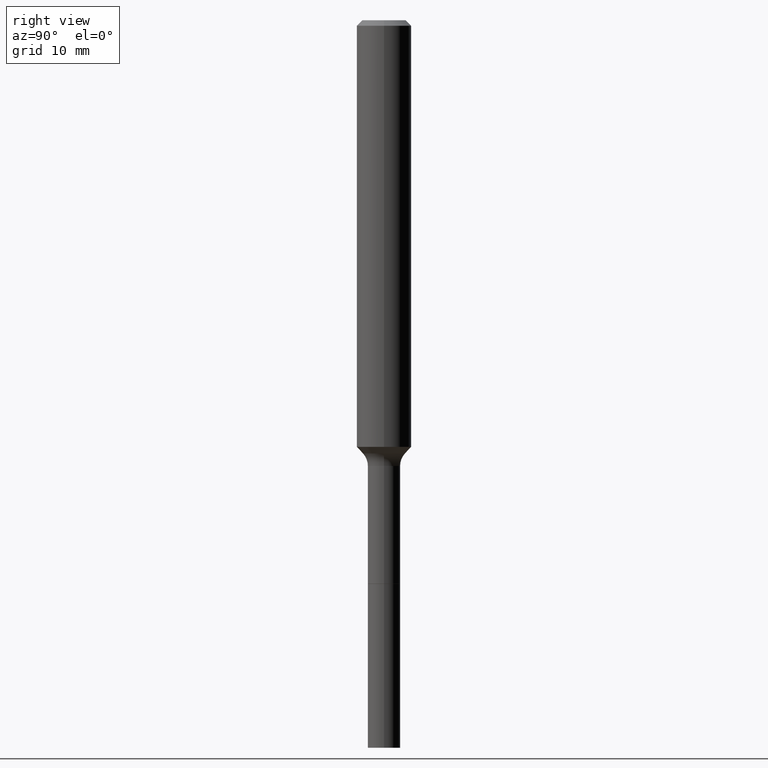
[diagram: clean part render]
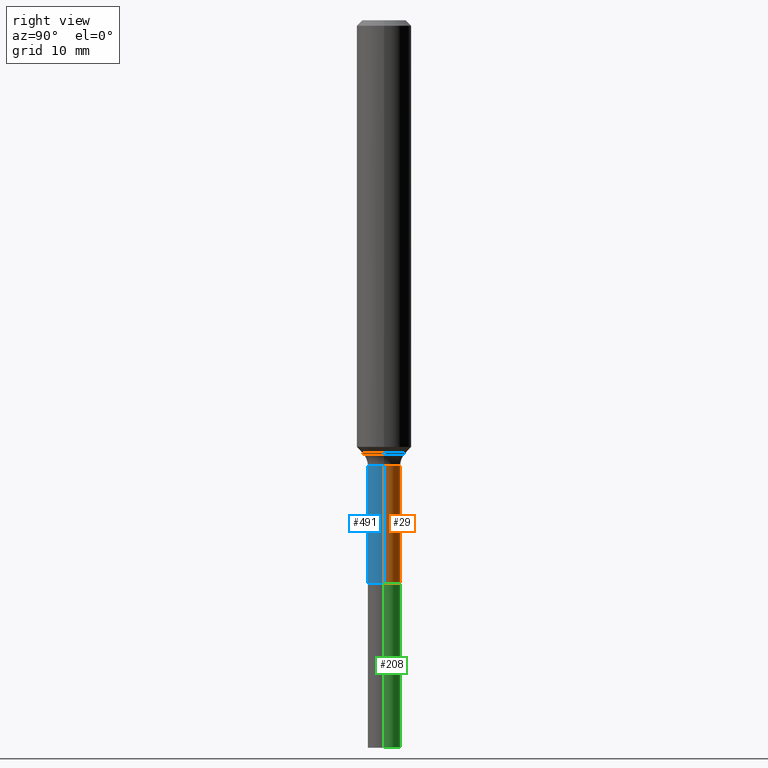
[diagram: same view with three faces highlighted in distinct colors, each labeled with its STEP entity id]
A machine part, right view with three faces highlighted in distinct colors.
Their STEP definitions:

[orange] entity #29 — the highlighted cylindrical surface (edge-blend (fillet) strip) has radius 1.7856 mm, axis along (-0, 0, 1).
#5 = CARTESIAN_POINT ( 'NONE',  ( -0.07029999999999995974, 4.995115432393501446E-16, -3.458011368449196767E-30 ) ) ;
#29 = ADVANCED_FACE ( 'NONE', ( #123 ), #288, .T. ) ;
#55 = EDGE_CURVE ( 'NONE', #444, #361, #175, .T. ) ;
#59 = DIRECTION ( 'NONE',  ( -2.445468806185136597E-29, 3.491481338843145583E-15, 1.000000000000000000 ) ) ;
#62 = ORIENTED_EDGE ( 'NONE', *, *, #336, .T. ) ;
#69 = EDGE_CURVE ( 'NONE', #361, #247, #158, .T. ) ;
#86 = EDGE_CURVE ( 'NONE', #500, #247, #130, .T. ) ;
#109 = CARTESIAN_POINT ( 'NONE',  ( 0.07029999999999993199, -7.228064667673078944E-15, -1.929599999999999982 ) ) ;
#123 = FACE_OUTER_BOUND ( 'NONE', #332, .T. ) ;
#130 = LINE ( 'NONE', #5, #304 ) ;
#158 = CIRCLE ( 'NONE', #294, 0.07029999999999993199 ) ;
#170 = DIRECTION ( 'NONE',  ( 1.000000000000000000, -6.982962677686268288E-15, 4.876176775795935793E-29 ) ) ;
#175 = LINE ( 'NONE', #368, #406 ) ;
#204 = ORIENTED_EDGE ( 'NONE', *, *, #69, .F. ) ;
#247 = VERTEX_POINT ( 'NONE', #383 ) ;
#260 = DIRECTION ( 'NONE',  ( -2.445468806185136877E-29, 3.491481338843145188E-15, 1.000000000000000000 ) ) ;
#271 = CARTESIAN_POINT ( 'NONE',  ( 5.967188433972353247E-29, -8.519563614911160138E-15, -2.440100000000000158 ) ) ;
#288 = CYLINDRICAL_SURFACE ( 'NONE', #472, 0.07029999999999995974 ) ;
#294 = AXIS2_PLACEMENT_3D ( 'NONE', #415, #59, #483 ) ;
#304 = VECTOR ( 'NONE', #260, 39.37007874015748143 ) ;
#308 = DIRECTION ( 'NONE',  ( -2.445468806185136597E-29, 3.491481338843145583E-15, 1.000000000000000000 ) ) ;
#332 = EDGE_LOOP ( 'NONE', ( #62, #484, #204, #393 ) ) ;
#336 = EDGE_CURVE ( 'NONE', #444, #500, #372, .T. ) ;
#361 = VERTEX_POINT ( 'NONE', #109 ) ;
#366 = DIRECTION ( 'NONE',  ( -2.445468806185136597E-29, 3.491481338843145583E-15, 1.000000000000000000 ) ) ;
#367 = CARTESIAN_POINT ( 'NONE',  ( -0.07030000000000000138, -7.128851459932096824E-15, -2.440100000000000158 ) ) ;
#368 = CARTESIAN_POINT ( 'NONE',  ( 0.07029999999999995974, -4.909022762413443557E-16, 3.427952273384541035E-30 ) ) ;
#372 = CIRCLE ( 'NONE', #385, 0.07030000000000000138 ) ;
#383 = CARTESIAN_POINT ( 'NONE',  ( -0.07029999999999993199, -7.128851459932096824E-15, -1.929599999999999982 ) ) ;
#385 = AXIS2_PLACEMENT_3D ( 'NONE', #271, #308, #427 ) ;
#393 = ORIENTED_EDGE ( 'NONE', *, *, #55, .F. ) ;
#394 = CARTESIAN_POINT ( 'NONE',  ( 0.07030000000000000138, -9.010465891152504296E-15, -2.440100000000000158 ) ) ;
#400 = CARTESIAN_POINT ( 'NONE',  ( 0.000000000000000000, 0.000000000000000000, 0.000000000000000000 ) ) ;
#406 = VECTOR ( 'NONE', #457, 39.37007874015748143 ) ;
#415 = CARTESIAN_POINT ( 'NONE',  ( 4.718776608414840041E-29, -6.737162391431733996E-15, -1.929599999999999982 ) ) ;
#427 = DIRECTION ( 'NONE',  ( 1.000000000000000000, -6.982962677686265133E-15, 0.000000000000000000 ) ) ;
#444 = VERTEX_POINT ( 'NONE', #394 ) ;
#457 = DIRECTION ( 'NONE',  ( -2.445468806185136877E-29, 3.491481338843145188E-15, 1.000000000000000000 ) ) ;
#472 = AXIS2_PLACEMENT_3D ( 'NONE', #400, #366, #170 ) ;
#483 = DIRECTION ( 'NONE',  ( 1.000000000000000000, -6.982962677686272233E-15, 0.000000000000000000 ) ) ;
#484 = ORIENTED_EDGE ( 'NONE', *, *, #86, .T. ) ;
#500 = VERTEX_POINT ( 'NONE', #367 ) ;

[blue] entity #491 — the highlighted cylindrical surface (edge-blend (fillet) strip) has radius 1.7856 mm, axis along (-0, 0, 1).
#5 = CARTESIAN_POINT ( 'NONE',  ( -0.07029999999999995974, 4.995115432393501446E-16, -3.458011368449196767E-30 ) ) ;
#17 = ORIENTED_EDGE ( 'NONE', *, *, #55, .T. ) ;
#43 = AXIS2_PLACEMENT_3D ( 'NONE', #124, #325, #407 ) ;
#49 = EDGE_CURVE ( 'NONE', #500, #444, #404, .T. ) ;
#55 = EDGE_CURVE ( 'NONE', #444, #361, #175, .T. ) ;
#60 = ORIENTED_EDGE ( 'NONE', *, *, #330, .F. ) ;
#86 = EDGE_CURVE ( 'NONE', #500, #247, #130, .T. ) ;
#93 = AXIS2_PLACEMENT_3D ( 'NONE', #380, #184, #387 ) ;
#96 = CIRCLE ( 'NONE', #93, 0.07029999999999993199 ) ;
#109 = CARTESIAN_POINT ( 'NONE',  ( 0.07029999999999993199, -7.228064667673078944E-15, -1.929599999999999982 ) ) ;
#124 = CARTESIAN_POINT ( 'NONE',  ( 0.000000000000000000, 0.000000000000000000, 0.000000000000000000 ) ) ;
#127 = CYLINDRICAL_SURFACE ( 'NONE', #43, 0.07029999999999995974 ) ;
#130 = LINE ( 'NONE', #5, #304 ) ;
#131 = EDGE_LOOP ( 'NONE', ( #495, #156, #17, #60 ) ) ;
#156 = ORIENTED_EDGE ( 'NONE', *, *, #49, .T. ) ;
#175 = LINE ( 'NONE', #368, #406 ) ;
#184 = DIRECTION ( 'NONE',  ( -2.445468806185136597E-29, 3.491481338843145583E-15, 1.000000000000000000 ) ) ;
#197 = CARTESIAN_POINT ( 'NONE',  ( 5.967188433972353247E-29, -8.519563614911160138E-15, -2.440100000000000158 ) ) ;
#247 = VERTEX_POINT ( 'NONE', #383 ) ;
#256 = FACE_OUTER_BOUND ( 'NONE', #131, .T. ) ;
#260 = DIRECTION ( 'NONE',  ( -2.445468806185136877E-29, 3.491481338843145188E-15, 1.000000000000000000 ) ) ;
#304 = VECTOR ( 'NONE', #260, 39.37007874015748143 ) ;
#325 = DIRECTION ( 'NONE',  ( -2.445468806185136597E-29, 3.491481338843145583E-15, 1.000000000000000000 ) ) ;
#330 = EDGE_CURVE ( 'NONE', #247, #361, #96, .T. ) ;
#354 = DIRECTION ( 'NONE',  ( -2.445468806185136597E-29, 3.491481338843145583E-15, 1.000000000000000000 ) ) ;
#361 = VERTEX_POINT ( 'NONE', #109 ) ;
#367 = CARTESIAN_POINT ( 'NONE',  ( -0.07030000000000000138, -7.128851459932096824E-15, -2.440100000000000158 ) ) ;
#368 = CARTESIAN_POINT ( 'NONE',  ( 0.07029999999999995974, -4.909022762413443557E-16, 3.427952273384541035E-30 ) ) ;
#380 = CARTESIAN_POINT ( 'NONE',  ( 4.718776608414840041E-29, -6.737162391431733996E-15, -1.929599999999999982 ) ) ;
#383 = CARTESIAN_POINT ( 'NONE',  ( -0.07029999999999993199, -7.128851459932096824E-15, -1.929599999999999982 ) ) ;
#387 = DIRECTION ( 'NONE',  ( 1.000000000000000000, -6.982962677686272233E-15, 0.000000000000000000 ) ) ;
#394 = CARTESIAN_POINT ( 'NONE',  ( 0.07030000000000000138, -9.010465891152504296E-15, -2.440100000000000158 ) ) ;
#404 = CIRCLE ( 'NONE', #489, 0.07030000000000000138 ) ;
#406 = VECTOR ( 'NONE', #457, 39.37007874015748143 ) ;
#407 = DIRECTION ( 'NONE',  ( 1.000000000000000000, -6.982962677686268288E-15, 4.876176775795935793E-29 ) ) ;
#444 = VERTEX_POINT ( 'NONE', #394 ) ;
#457 = DIRECTION ( 'NONE',  ( -2.445468806185136877E-29, 3.491481338843145188E-15, 1.000000000000000000 ) ) ;
#474 = DIRECTION ( 'NONE',  ( 1.000000000000000000, -6.982962677686265133E-15, 0.000000000000000000 ) ) ;
#489 = AXIS2_PLACEMENT_3D ( 'NONE', #197, #354, #474 ) ;
#491 = ADVANCED_FACE ( 'NONE', ( #256 ), #127, .T. ) ;
#495 = ORIENTED_EDGE ( 'NONE', *, *, #86, .F. ) ;
#500 = VERTEX_POINT ( 'NONE', #367 ) ;

[green] entity #208 — the highlighted cylindrical surface (edge-blend (fillet) strip) has radius 1.7856 mm, axis along (-0, 0, 1).
#13 = CARTESIAN_POINT ( 'NONE',  ( -0.07030000000000000138, -9.259527946961124365E-15, -2.440600000000000325 ) ) ;
#20 = CIRCLE ( 'NONE', #234, 0.07030000000000000138 ) ;
#21 = CARTESIAN_POINT ( 'NONE',  ( 5.968411168375444927E-29, -8.521309355580580852E-15, -2.440600000000000325 ) ) ;
#23 = CYLINDRICAL_SURFACE ( 'NONE', #498, 0.07030000000000009852 ) ;
#30 = VECTOR ( 'NONE', #389, 39.37007874015748143 ) ;
#53 = VERTEX_POINT ( 'NONE', #13 ) ;
#58 = DIRECTION ( 'NONE',  ( 1.000000000000000000, -6.982962677686279332E-15, 0.000000000000000000 ) ) ;
#71 = CARTESIAN_POINT ( 'NONE',  ( 0.07030000000000000138, -9.012211631821926589E-15, -2.440600000000000325 ) ) ;
#74 = AXIS2_PLACEMENT_3D ( 'NONE', #157, #169, #333 ) ;
#104 = DIRECTION ( 'NONE',  ( -2.445468806185136597E-29, 3.491481338843145583E-15, 1.000000000000000000 ) ) ;
#125 = EDGE_CURVE ( 'NONE', #477, #297, #319, .T. ) ;
#157 = CARTESIAN_POINT ( 'NONE',  ( 7.702248551960706711E-29, -1.099676962482037231E-14, -3.149600000000000399 ) ) ;
#165 = ORIENTED_EDGE ( 'NONE', *, *, #125, .F. ) ;
#169 = DIRECTION ( 'NONE',  ( -2.445468806185136597E-29, 3.491481338843145583E-15, 1.000000000000000000 ) ) ;
#182 = EDGE_CURVE ( 'NONE', #302, #53, #381, .T. ) ;
#188 = ORIENTED_EDGE ( 'NONE', *, *, #182, .T. ) ;
#208 = ADVANCED_FACE ( 'NONE', ( #263 ), #23, .T. ) ;
#218 = EDGE_CURVE ( 'NONE', #297, #53, #20, .T. ) ;
#234 = AXIS2_PLACEMENT_3D ( 'NONE', #414, #104, #58 ) ;
#235 = CARTESIAN_POINT ( 'NONE',  ( 0.07030000000000009852, -9.012211631821926589E-15, -2.440600000000000325 ) ) ;
#261 = CARTESIAN_POINT ( 'NONE',  ( -0.07030000000000009852, -8.021797812341230215E-15, -2.440600000000000325 ) ) ;
#263 = FACE_OUTER_BOUND ( 'NONE', #441, .T. ) ;
#297 = VERTEX_POINT ( 'NONE', #71 ) ;
#302 = VERTEX_POINT ( 'NONE', #505 ) ;
#306 = DIRECTION ( 'NONE',  ( -2.445468806185136877E-29, 3.491481338843145188E-15, 1.000000000000000000 ) ) ;
#311 = DIRECTION ( 'NONE',  ( 1.000000000000000000, -6.982962677686269866E-15, 0.000000000000000000 ) ) ;
#319 = LINE ( 'NONE', #235, #30 ) ;
#333 = DIRECTION ( 'NONE',  ( 1.000000000000000000, -6.982962677686259611E-15, 0.000000000000000000 ) ) ;
#378 = ORIENTED_EDGE ( 'NONE', *, *, #218, .F. ) ;
#381 = LINE ( 'NONE', #261, #417 ) ;
#389 = DIRECTION ( 'NONE',  ( -2.445468806185136877E-29, 3.491481338843145188E-15, 1.000000000000000000 ) ) ;
#414 = CARTESIAN_POINT ( 'NONE',  ( 5.968411168375444927E-29, -8.521309355580580852E-15, -2.440600000000000325 ) ) ;
#417 = VECTOR ( 'NONE', #306, 39.37007874015748143 ) ;
#426 = DIRECTION ( 'NONE',  ( -2.445468806185136597E-29, 3.491481338843145583E-15, 1.000000000000000000 ) ) ;
#441 = EDGE_LOOP ( 'NONE', ( #492, #188, #378, #165 ) ) ;
#477 = VERTEX_POINT ( 'NONE', #485 ) ;
#480 = EDGE_CURVE ( 'NONE', #477, #302, #516, .T. ) ;
#485 = CARTESIAN_POINT ( 'NONE',  ( 0.07030000000000019567, -1.148767190106171805E-14, -3.149600000000000399 ) ) ;
#492 = ORIENTED_EDGE ( 'NONE', *, *, #480, .T. ) ;
#498 = AXIS2_PLACEMENT_3D ( 'NONE', #21, #426, #311 ) ;
#505 = CARTESIAN_POINT ( 'NONE',  ( -0.07030000000000019567, -9.259527946961122788E-15, -3.149600000000000399 ) ) ;
#516 = CIRCLE ( 'NONE', #74, 0.07030000000000019567 ) ;